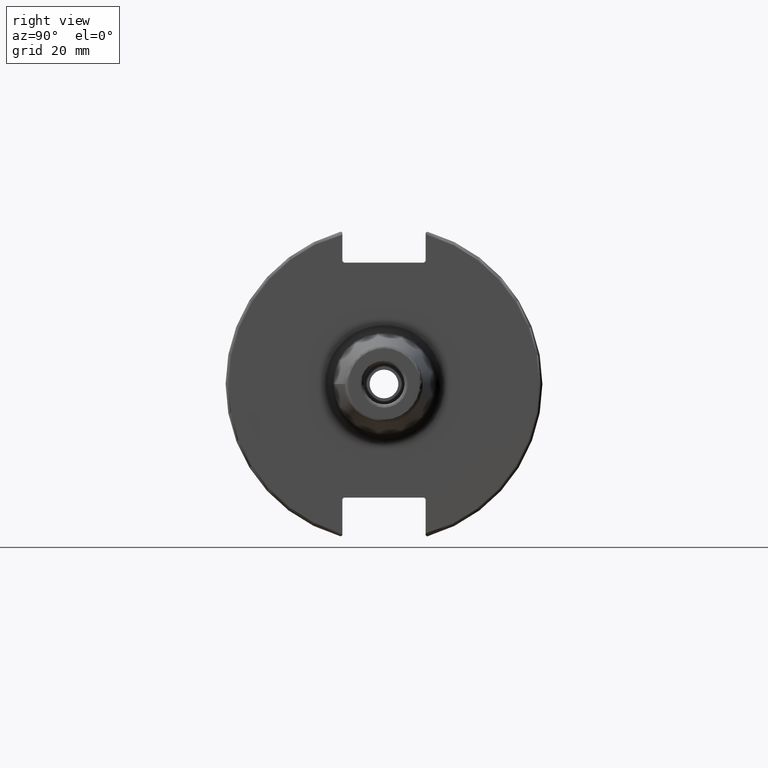
[diagram: clean part render]
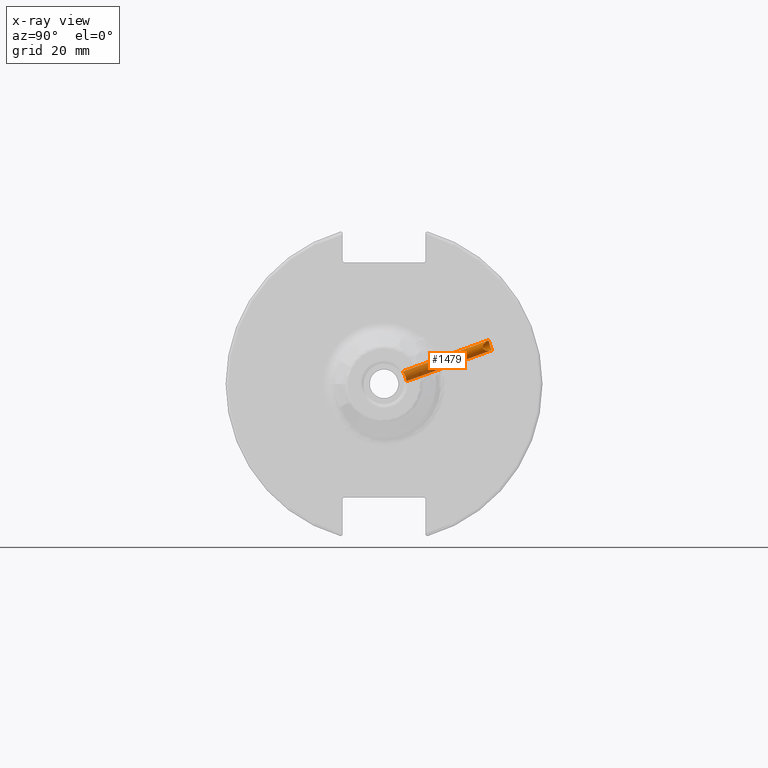
[diagram: x-ray — body ghosted, one internal face saturated and labeled with its STEP entity id]
A machine part, right view, then the same camera in x-ray: the body is ghosted and one INTERNAL B-rep face — a face not visible from any outside direction — is saturated and labeled: STEP entity #1479.
In plain terms, the highlighted cylindrical surface (bore or boss wall) has radius 1.621 mm, axis along (-0, 0.9397, 0.342).
Its self-contained STEP definition (entity closure, byte-faithful):
#35=B_SPLINE_CURVE_WITH_KNOTS('',3,(#2263,#2264,#2265,#2266,#2267,#2268,
#2269,#2270,#2271,#2272,#2273,#2274,#2275,#2276,#2277,#2278,#2279,#2280,
#2281,#2282,#2283,#2284,#2285,#2286,#2287,#2288),.UNSPECIFIED.,.F.,.F.,
(4,2,2,2,2,2,2,2,2,2,2,2,4),(0.,0.0613042810958886,0.122608562191777,0.183906587521475,
0.245204612851173,0.30650263818087,0.367800663510568,0.429104944606457,
0.490409225702345,0.551713506798234,0.613017787894123,0.674315813223821,
0.735613838553518),.UNSPECIFIED.);
#36=B_SPLINE_CURVE_WITH_KNOTS('',3,(#2289,#2290,#2291,#2292,#2293,#2294,
#2295,#2296,#2297,#2298),.UNSPECIFIED.,.F.,.F.,(4,2,2,2,4),(0.735613838553518,
0.796911863883216,0.858209889212913,0.919514170308802,0.980818451404691),
 .UNSPECIFIED.);
#46=B_SPLINE_CURVE_WITH_KNOTS('',3,(#2543,#2544,#2545,#2546,#2547,#2548,
#2549,#2550,#2551,#2552,#2553,#2554,#2555,#2556,#2557,#2558,#2559,#2560,
#2561,#2562,#2563,#2564,#2565,#2566,#2567,#2568,#2569,#2570,#2571,#2572,
#2573,#2574),.UNSPECIFIED.,.F.,.F.,(4,2,2,2,2,2,2,2,2,2,2,2,2,2,2,4),(0.,
0.0884839677067705,0.176967935413541,0.264588928472714,0.292934680202631,
0.321280431932548,0.349626183662465,0.377971935392382,0.465592928451555,
0.554076896158326,0.642560863865096,0.674019283137882,0.705477702410669,
0.768394540956241,0.83753256912227,0.892424435682429),.UNSPECIFIED.);
#47=B_SPLINE_CURVE_WITH_KNOTS('',3,(#2575,#2576,#2577,#2578,#2579,#2580,
#2581,#2582,#2583,#2584,#2585,#2586),.UNSPECIFIED.,.F.,.F.,(4,2,2,2,2,4),
(0.892424435682429,0.947316302242587,1.01645433040862,1.07937116895419,
1.11082958822697,1.14228800749976),.UNSPECIFIED.);
#116=LINE('',#2587,#208);
#208=VECTOR('',#1890,1.621);
#280=CYLINDRICAL_SURFACE('',#1625,1.621);
#380=FACE_OUTER_BOUND('',#476,.T.);
#476=EDGE_LOOP('',(#1136,#1137,#1138,#1139,#1140,#1141));
#650=VERTEX_POINT('',#2261);
#651=VERTEX_POINT('',#2262);
#685=VERTEX_POINT('',#2541);
#686=VERTEX_POINT('',#2542);
#809=EDGE_CURVE('',#650,#651,#35,.T.);
#810=EDGE_CURVE('',#651,#650,#36,.T.);
#856=EDGE_CURVE('',#685,#686,#46,.T.);
#857=EDGE_CURVE('',#686,#685,#47,.T.);
#858=EDGE_CURVE('',#686,#651,#116,.T.);
#1136=ORIENTED_EDGE('',*,*,#856,.F.);
#1137=ORIENTED_EDGE('',*,*,#857,.F.);
#1138=ORIENTED_EDGE('',*,*,#858,.T.);
#1139=ORIENTED_EDGE('',*,*,#810,.T.);
#1140=ORIENTED_EDGE('',*,*,#809,.T.);
#1141=ORIENTED_EDGE('',*,*,#858,.F.);
#1479=ADVANCED_FACE('',(#380),#280,.F.);
#1625=AXIS2_PLACEMENT_3D('',#2540,#1888,#1889);
#1888=DIRECTION('center_axis',(-1.32999192572579E-16,0.939692620785908,
0.342020143325669));
#1889=DIRECTION('ref_axis',(1.,1.41534784492982E-16,0.));
#1890=DIRECTION('',(1.32999192572579E-16,-0.939692620785908,-0.342020143325669));
#2261=CARTESIAN_POINT('',(11.1341,6.95346328967804,0.805821493322101));
#2262=CARTESIAN_POINT('',(9.5131,6.57784834550136,2.39414100327968));
#2263=CARTESIAN_POINT('Ctrl Pts',(11.1341,6.95346328967804,0.805821493322101));
#2264=CARTESIAN_POINT('Ctrl Pts',(11.338447603653,6.95346328967804,0.8058214933221));
#2265=CARTESIAN_POINT('Ctrl Pts',(11.5558858559344,6.9489856151589,0.847813764950008));
#2266=CARTESIAN_POINT('Ctrl Pts',(11.955033227138,6.92641118197014,1.01588248772159));
#2267=CARTESIAN_POINT('Ctrl Pts',(12.1368096133175,6.9077940068322,1.14172879648064));
#2268=CARTESIAN_POINT('Ctrl Pts',(12.4238159268308,6.85439814147701,1.42772003025957));
#2269=CARTESIAN_POINT('Ctrl Pts',(12.5484516639509,6.81594760192237,1.60717410893748));
#2270=CARTESIAN_POINT('Ctrl Pts',(12.7141138416802,6.71285124761748,1.9944368762592));
#2271=CARTESIAN_POINT('Ctrl Pts',(12.7551,6.64773221019751,2.2021366630428));
#2272=CARTESIAN_POINT('Ctrl Pts',(12.7551,6.50796448080521,2.58614534351656));
#2273=CARTESIAN_POINT('Ctrl Pts',(12.7141138416802,6.424341708083,2.78711032142741));
#2274=CARTESIAN_POINT('Ctrl Pts',(12.5484516639509,6.25439038887677,3.15003987151213));
#2275=CARTESIAN_POINT('Ctrl Pts',(12.4238159268308,6.16849435275567,3.31222520168986));
#2276=CARTESIAN_POINT('Ctrl Pts',(12.1368096133175,6.02556633714446,3.56562939776576));
#2277=CARTESIAN_POINT('Ctrl Pts',(11.955033227138,5.95893547271035,3.6740001527837));
#2278=CARTESIAN_POINT('Ctrl Pts',(11.5558858559344,5.86819599923775,3.8172588298744));
#2279=CARTESIAN_POINT('Ctrl Pts',(11.338447603653,5.84463398501622,3.85230496991002));
#2280=CARTESIAN_POINT('Ctrl Pts',(10.929752396347,5.84463398501622,3.85230496991001));
#2281=CARTESIAN_POINT('Ctrl Pts',(10.7123141440656,5.86819599923775,3.8172588298744));
#2282=CARTESIAN_POINT('Ctrl Pts',(10.313166772862,5.95893547271036,3.67400015278369));
#2283=CARTESIAN_POINT('Ctrl Pts',(10.1313903866825,6.02556633714446,3.56562939776576));
#2284=CARTESIAN_POINT('Ctrl Pts',(9.84438407316922,6.16849435275567,3.31222520168986));
#2285=CARTESIAN_POINT('Ctrl Pts',(9.71974833604907,6.25439038887677,3.15003987151212));
#2286=CARTESIAN_POINT('Ctrl Pts',(9.55408615831982,6.42434170808301,2.7871103214274));
#2287=CARTESIAN_POINT('Ctrl Pts',(9.5131,6.50796448080521,2.58614534351656));
#2288=CARTESIAN_POINT('Ctrl Pts',(9.5131,6.57784834550136,2.39414100327968));
#2289=CARTESIAN_POINT('Ctrl Pts',(9.5131,6.57784834550136,2.39414100327968));
#2290=CARTESIAN_POINT('Ctrl Pts',(9.5131,6.6477322101975,2.2021366630428));
#2291=CARTESIAN_POINT('Ctrl Pts',(9.55408615831982,6.71285124761748,1.9944368762592));
#2292=CARTESIAN_POINT('Ctrl Pts',(9.71974833604907,6.81594760192237,1.60717410893749));
#2293=CARTESIAN_POINT('Ctrl Pts',(9.84438407316922,6.85439814147701,1.42772003025958));
#2294=CARTESIAN_POINT('Ctrl Pts',(10.1313903866825,6.9077940068322,1.14172879648064));
#2295=CARTESIAN_POINT('Ctrl Pts',(10.313166772862,6.92641118197014,1.0158824877216));
#2296=CARTESIAN_POINT('Ctrl Pts',(10.7123141440656,6.9489856151589,0.84781376495001));
#2297=CARTESIAN_POINT('Ctrl Pts',(10.929752396347,6.95346328967804,0.805821493322101));
#2298=CARTESIAN_POINT('Ctrl Pts',(11.1341,6.95346328967804,0.805821493322101));
#2540=CARTESIAN_POINT('Origin',(11.1341,21.5598376450015,7.84713915839248));
#2541=CARTESIAN_POINT('',(11.1341,33.313335016979,10.4000301811349));
#2542=CARTESIAN_POINT('',(9.5131,32.9255829555454,11.9839321416811));
#2543=CARTESIAN_POINT('Ctrl Pts',(11.1341,33.313335016979,10.4000301811349));
#2544=CARTESIAN_POINT('Ctrl Pts',(11.3757060767793,33.1543630852081,10.3421691298865));
#2545=CARTESIAN_POINT('Ctrl Pts',(11.5864820284691,32.9218505690671,10.3113735751054));
#2546=CARTESIAN_POINT('Ctrl Pts',(11.9681018879898,32.4180819286834,10.3035661598069));
#2547=CARTESIAN_POINT('Ctrl Pts',(12.1379400889368,32.1460311578073,10.3288989118134));
#2548=CARTESIAN_POINT('Ctrl Pts',(12.4213114787667,31.6460404618918,10.4484747155027));
#2549=CARTESIAN_POINT('Ctrl Pts',(12.5695213105869,31.350391478186,10.5645115156154));
#2550=CARTESIAN_POINT('Ctrl Pts',(12.6851350131118,31.0645202123338,10.797613403218));
#2551=CARTESIAN_POINT('Ctrl Pts',(12.7111094113745,30.9933030092018,10.8682275910532));
#2552=CARTESIAN_POINT('Ctrl Pts',(12.7461906022264,30.8732584943377,11.0286552191396));
#2553=CARTESIAN_POINT('Ctrl Pts',(12.7551,30.8247283204383,11.1187338581983));
#2554=CARTESIAN_POINT('Ctrl Pts',(12.7551,30.760096199976,11.2963091497399));
#2555=CARTESIAN_POINT('Ctrl Pts',(12.7461906022264,30.7393710369309,11.396507985113));
#2556=CARTESIAN_POINT('Ctrl Pts',(12.7111094113745,30.7282095788841,11.5965658048968));
#2557=CARTESIAN_POINT('Ctrl Pts',(12.6851350131118,30.7373751965893,11.6964369468632));
#2558=CARTESIAN_POINT('Ctrl Pts',(12.5695213105869,30.8065302860973,12.0587578601968));
#2559=CARTESIAN_POINT('Ctrl Pts',(12.4213114787667,30.9584235297988,12.3376867096629));
#2560=CARTESIAN_POINT('Ctrl Pts',(12.1379400889368,31.2645767789862,12.7506749139037));
#2561=CARTESIAN_POINT('Ctrl Pts',(11.9681018879898,31.4566961811531,12.944951792532));
#2562=CARTESIAN_POINT('Ctrl Pts',(11.5864820284691,31.8476238585542,13.2627872056147));
#2563=CARTESIAN_POINT('Ctrl Pts',(11.3757060767793,32.0455337805463,13.3886526064744));
#2564=CARTESIAN_POINT('Ctrl Pts',(11.0482025718087,32.2610244898072,13.4670848104063));
#2565=CARTESIAN_POINT('Ctrl Pts',(10.9546197272613,32.3146654550416,13.4792369583723));
#2566=CARTESIAN_POINT('Ctrl Pts',(10.7595056152646,32.4073631346194,13.4769601376887));
#2567=CARTESIAN_POINT('Ctrl Pts',(10.6579468329885,32.4463573573083,13.4623489695152));
#2568=CARTESIAN_POINT('Ctrl Pts',(10.3586687330207,32.5415491913672,13.3759423222779));
#2569=CARTESIAN_POINT('Ctrl Pts',(10.1659386735598,32.5780714501619,13.2587921009005));
#2570=CARTESIAN_POINT('Ctrl Pts',(9.84844561894806,32.6511585393986,12.9627897133043));
#2571=CARTESIAN_POINT('Ctrl Pts',(9.69712806088231,32.6986445558393,12.7362303482748));
#2572=CARTESIAN_POINT('Ctrl Pts',(9.55236126545399,32.799004604605,12.3622019181971));
#2573=CARTESIAN_POINT('Ctrl Pts',(9.5131,32.8630025419843,12.1558704148403));
#2574=CARTESIAN_POINT('Ctrl Pts',(9.5131,32.9255829555454,11.9839321416811));
#2575=CARTESIAN_POINT('Ctrl Pts',(9.5131,32.9255829555454,11.9839321416811));
#2576=CARTESIAN_POINT('Ctrl Pts',(9.5131,32.9881633691064,11.811993868522));
#2577=CARTESIAN_POINT('Ctrl Pts',(9.55236126545399,33.0717654386517,11.6127976857422));
#2578=CARTESIAN_POINT('Ctrl Pts',(9.69712806088231,33.235306021508,11.2617650894585));
#2579=CARTESIAN_POINT('Ctrl Pts',(9.84844561894806,33.3445591751872,11.0576871238396));
#2580=CARTESIAN_POINT('Ctrl Pts',(10.1659386735598,33.4788378837982,10.7839566642822));
#2581=CARTESIAN_POINT('Ctrl Pts',(10.3586687330207,33.5261629211717,10.6707383327549));
#2582=CARTESIAN_POINT('Ctrl Pts',(10.6579468329885,33.5087828678993,10.5433588693138));
#2583=CARTESIAN_POINT('Ctrl Pts',(10.7595056152646,33.4883034381597,10.5071010619333));
#2584=CARTESIAN_POINT('Ctrl Pts',(10.9546197272613,33.418756407954,10.4457719962213));
#2585=CARTESIAN_POINT('Ctrl Pts',(11.0482025718087,33.369853794469,10.4206013338184));
#2586=CARTESIAN_POINT('Ctrl Pts',(11.1341,33.313335016979,10.4000301811349));
#2587=CARTESIAN_POINT('',(9.5131,21.5598376450015,7.84713915839248));